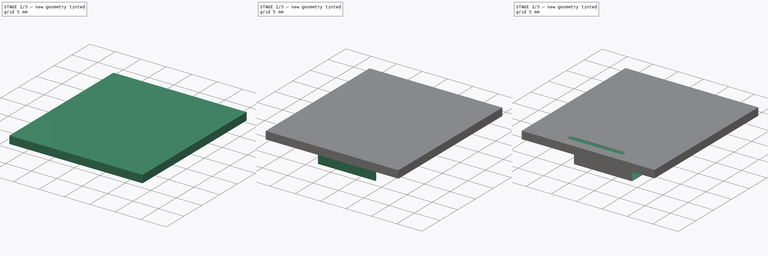
[diagram: build sequence overview — one tinted view per stage of 3, left to right]
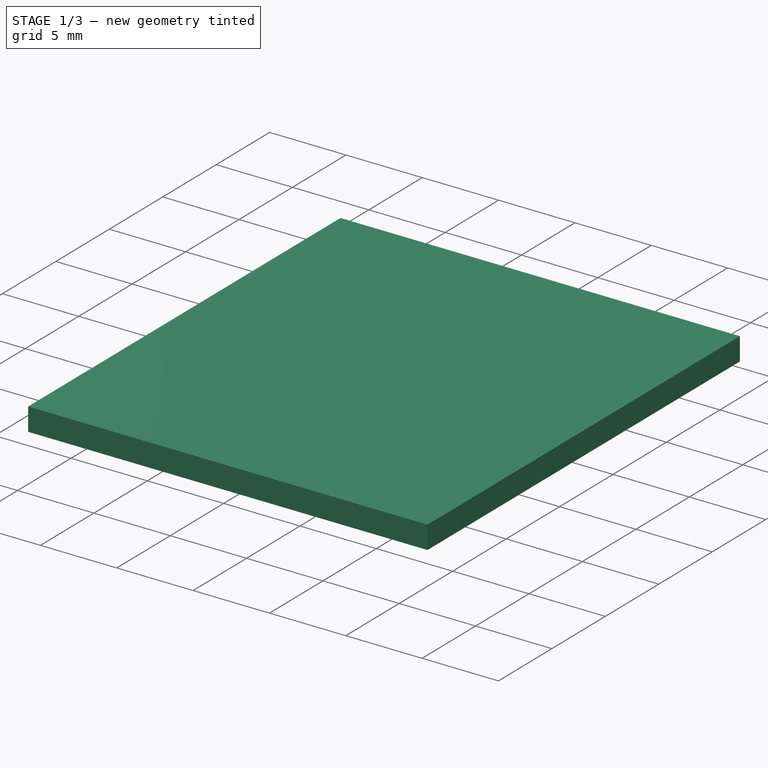
[diagram: stage 1 of 3 — iso view after this stage's code; geometry added in this stage tinted green]
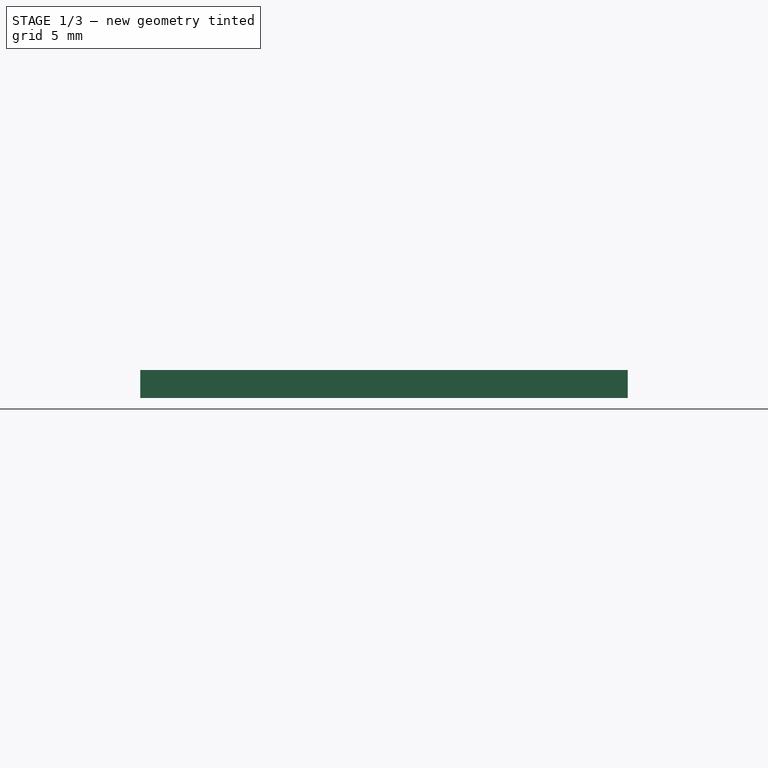
[diagram: stage 1 of 3 — front view after this stage's code; geometry added in this stage tinted green]
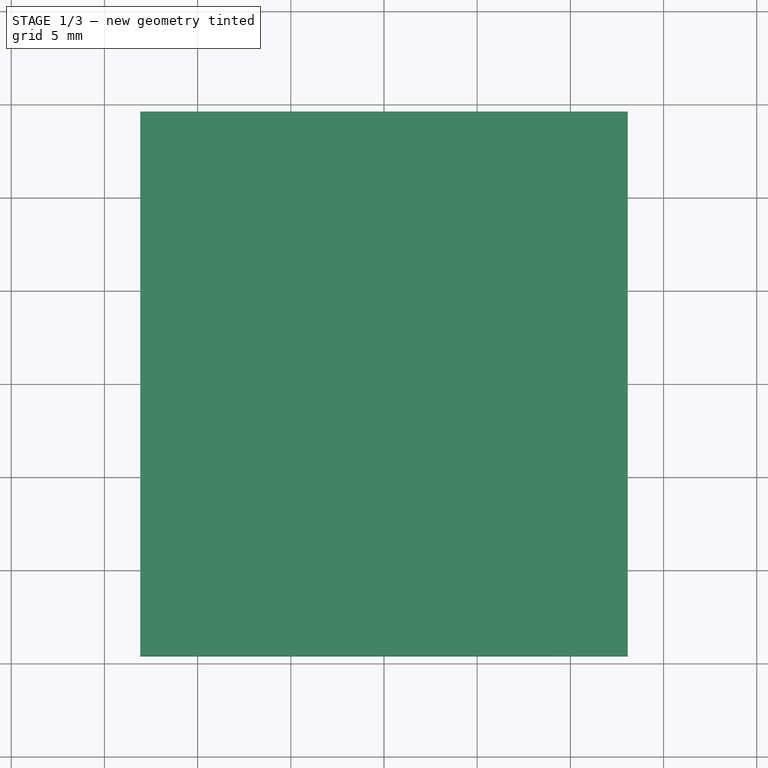
[diagram: stage 1 of 3 — top view after this stage's code; geometry added in this stage tinted green]
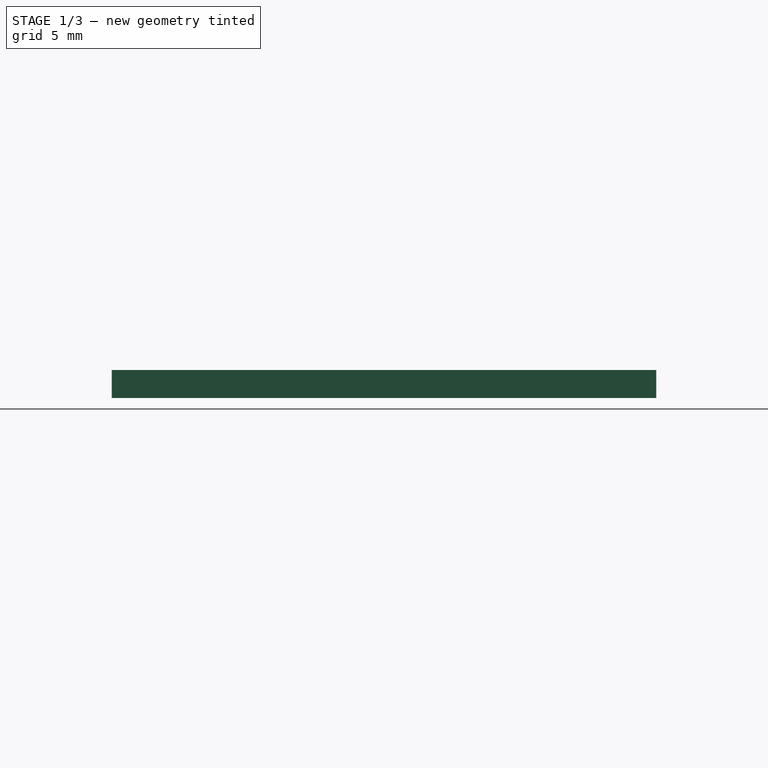
[diagram: stage 1 of 3 — right view after this stage's code; geometry added in this stage tinted green]
FCSTD DOCUMENT  (FreeCAD 0.20R29177 +426 (Git))
Label: 1.3Inch-3D-Model
License: All rights reserved
LicenseURL: http://en.wikipedia.org/wiki/All_rights_reserved
objects: Sketcher::SketchObject×5, PartDesign::Pad×4, PartDesign::Pocket×1, PartDesign::Body×1
note: 16 computed .brp shape members not serialized (recipe doc carries the construction recipe); baked Part::Feature solids carry a one-line shape summary decoded from their .brp

FEATURE [Sketcher::SketchObject] Sketch
  FullyConstrained = true
  MapMode = 5
  Support = -> [XY_Plane]
  sketch-geometry (4):
    g0: LineSegment StartX=-13.08 StartY=14.61 StartZ=0 EndX=13.08 EndY=14.61 EndZ=0
    g1: LineSegment StartX=13.08 StartY=14.61 StartZ=0 EndX=13.08 EndY=-14.61 EndZ=0
    g2: LineSegment StartX=13.08 StartY=-14.61 StartZ=0 EndX=-13.08 EndY=-14.61 EndZ=0
    g3: LineSegment StartX=-13.08 StartY=-14.61 StartZ=0 EndX=-13.08 EndY=14.61 EndZ=0
  constraints (11):
    c: Coincident(g0,g1)
    c: Coincident(g1,g2)
    c: Coincident(g2,g3)
    c: Coincident(g3,g0)
    c: Horizontal(g0)
    c: Horizontal(g2)
    c: Vertical(g1)
    c: Vertical(g3)
    c: DistanceX(g0,g0) = 26.16
    c: DistanceY(g3,g3) = 29.22
    c: Symmetric(g0,g1,g-1)
FEATURE [PartDesign::Pad] Pad
  Direction = (0,0,1)
  Length = 1.5
  Length2 = 10
  Profile = -> Sketch
  ReferenceAxis = -> Sketch [N_Axis]
  Type = 0
FEATURE [Sketcher::SketchObject] Sketch001
  ExternalGeometry = -> [Pad]
  FullyConstrained = true
  MapMode = 5
  Placement = pos=(0,0,1.5) rot=(0,0,1;0rad)
  Support = -> [Pad]
  sketch-geometry (4):
    g0: LineSegment StartX=-11.7 StartY=13.61 StartZ=0 EndX=11.7 EndY=13.61 EndZ=0
    g1: LineSegment StartX=11.7 StartY=13.61 StartZ=0 EndX=11.7 EndY=-9.79 EndZ=0
    g2: LineSegment StartX=11.7 StartY=-9.79 StartZ=0 EndX=-11.7 EndY=-9.79 EndZ=0
    g3: LineSegment StartX=-11.7 StartY=-9.79 StartZ=0 EndX=-11.7 EndY=13.61 EndZ=0
  constraints (11):
    c: Coincident(g0,g1)
    c: Coincident(g1,g2)
    c: Coincident(g2,g3)
    c: Coincident(g3,g0)
    c: Horizontal(g2)
    c: Vertical(g1)
    c: Vertical(g3)
    c: DistanceX(g0,g0) = 23.4
    c: Equal(g3,g0)
    c: Distance(g0,g-3) = 1
    c: Symmetric(g0,g0,g-2)
FEATURE [PartDesign::Pad] Pad001
  BaseFeature = -> Pad
  Direction = (0,0,1)
  Length = 1
  Length2 = 10
  Profile = -> Sketch001
  ReferenceAxis = -> Sketch001 [N_Axis]
  Reversed = true
  Type = 0
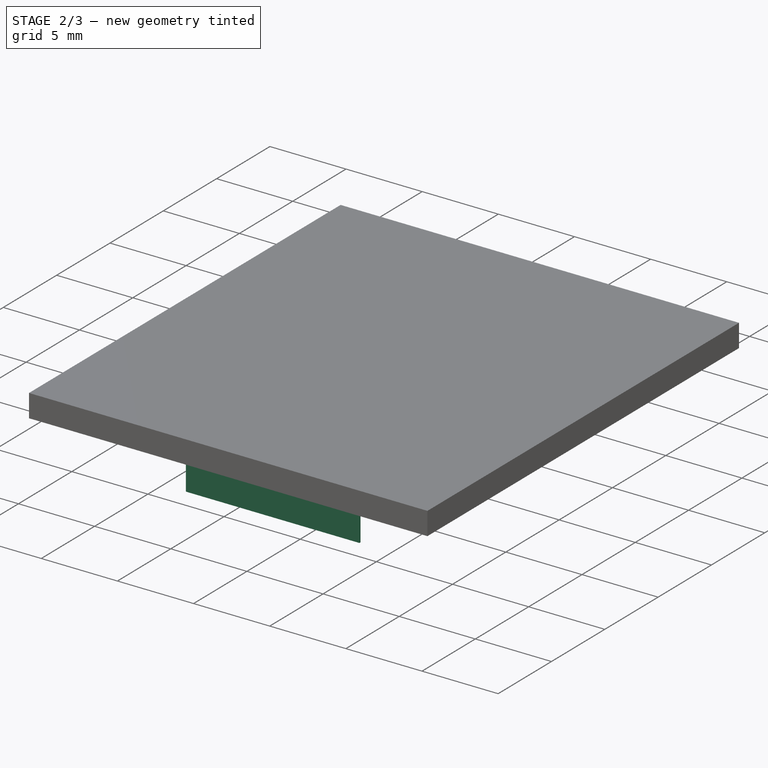
[diagram: stage 2 of 3 — iso view after this stage's code; geometry added in this stage tinted green]
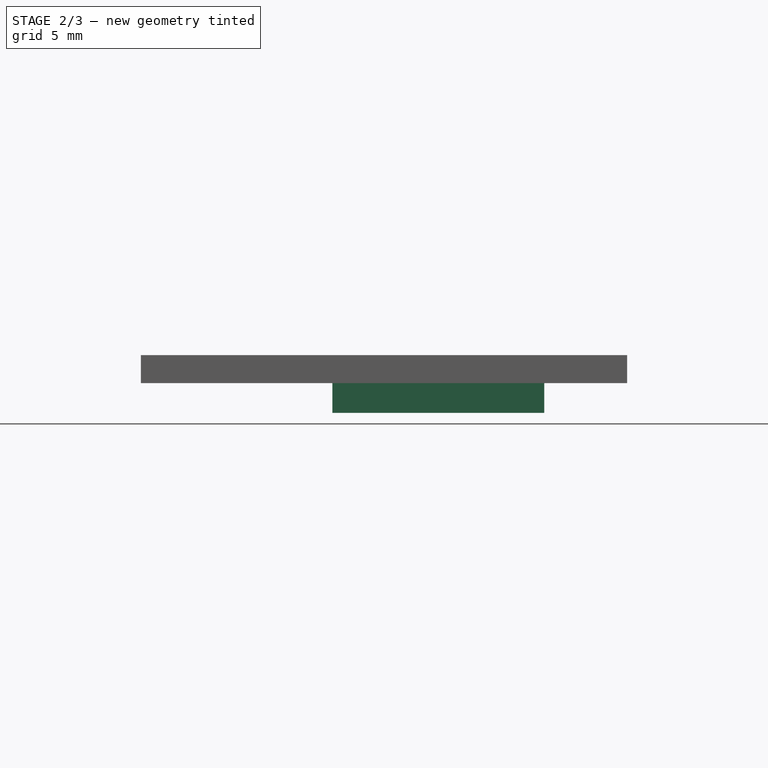
[diagram: stage 2 of 3 — front view after this stage's code; geometry added in this stage tinted green]
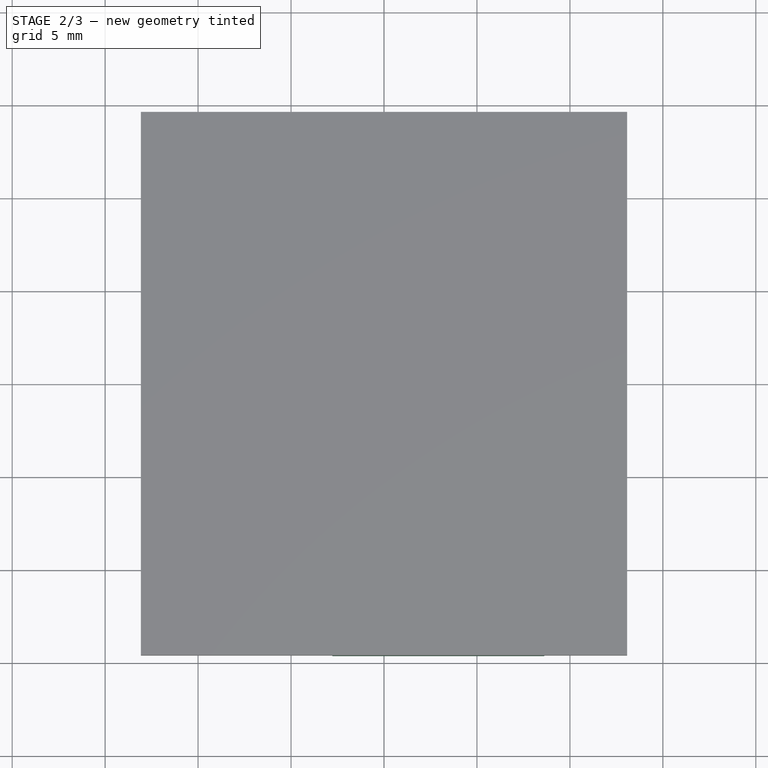
[diagram: stage 2 of 3 — top view after this stage's code; geometry added in this stage tinted green]
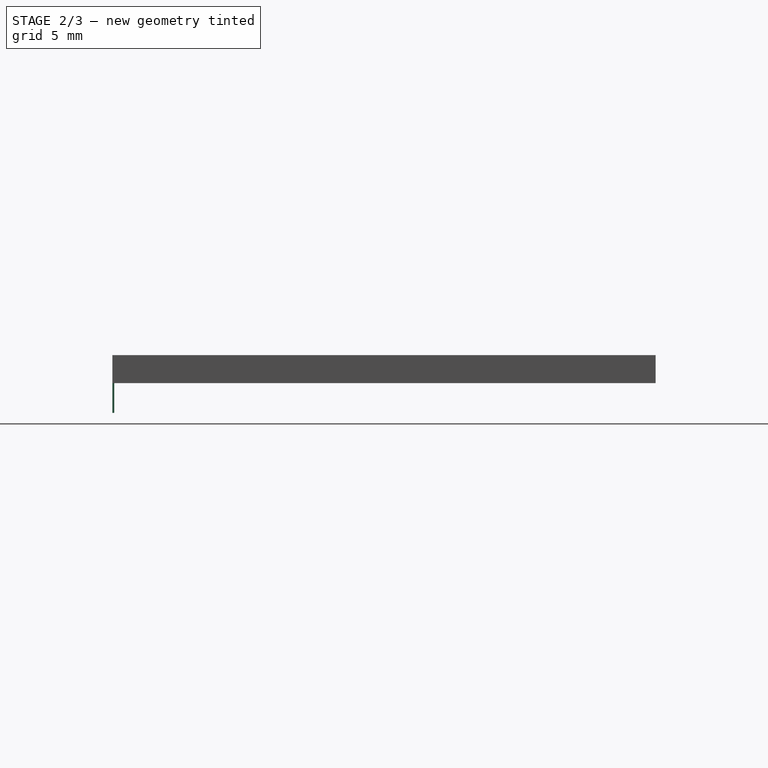
[diagram: stage 2 of 3 — right view after this stage's code; geometry added in this stage tinted green]
FEATURE [Sketcher::SketchObject] Sketch002
  ExternalGeometry = -> [Pad001]
  FullyConstrained = false
  MapMode = 5
  Placement = pos=(0,0,0) rot=(1,0,0;3.14159rad)
  Support = -> [Pad001]
  sketch-geometry (4):
    g0: LineSegment StartX=-2.78 StartY=14.61 StartZ=0 EndX=8.62 EndY=14.61 EndZ=0
    g1: LineSegment StartX=8.62 StartY=14.61 StartZ=0 EndX=8.62 EndY=14.51 EndZ=0
    g2: LineSegment StartX=8.62 StartY=14.51 StartZ=0 EndX=-2.78 EndY=14.51 EndZ=0
    g3: LineSegment StartX=-2.78 StartY=14.51 StartZ=0 EndX=-2.78 EndY=14.61 EndZ=0
  constraints (11):
    c: Coincident(g0,g1)
    c: Coincident(g1,g2)
    c: Coincident(g2,g3)
    c: Coincident(g3,g0)
    c: Horizontal(g0)
    c: Vertical(g1)
    c: Vertical(g3)
    c: DistanceY(g1,g1) = 0.1
    c: PointOnObject(g0,g-3)
    c: Distance(g0,g-4) = 10.3
    c: DistanceX(g0,g0) = 11.4
FEATURE [PartDesign::Pad] Pad002
  BaseFeature = -> Pad001
  Direction = (0,0,-1)
  Length = 1.6
  Length2 = 10
  Profile = -> Sketch002
  ReferenceAxis = -> Sketch002 [N_Axis]
  Type = 0
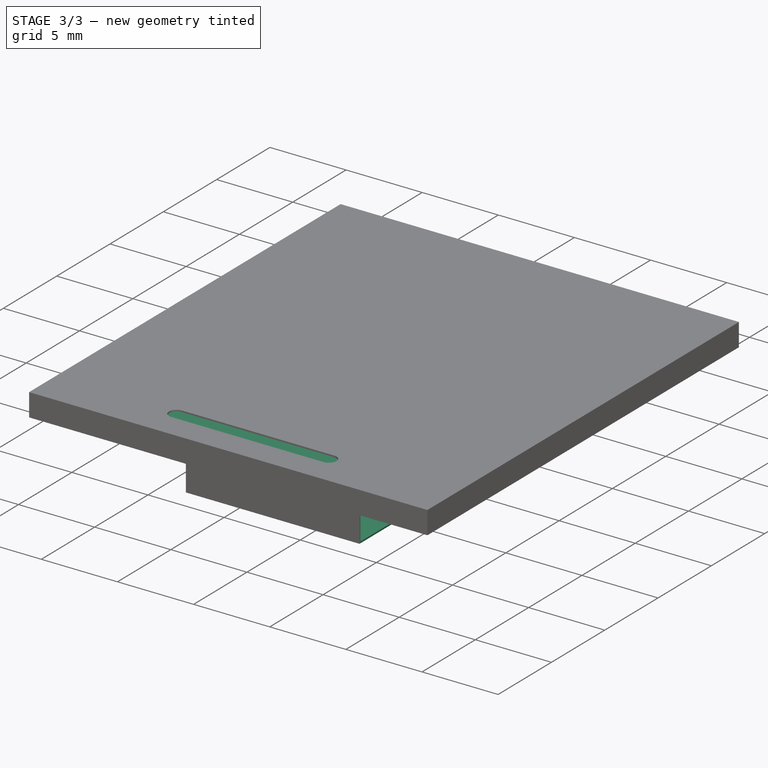
[diagram: stage 3 of 3 — iso view after this stage's code; geometry added in this stage tinted green]
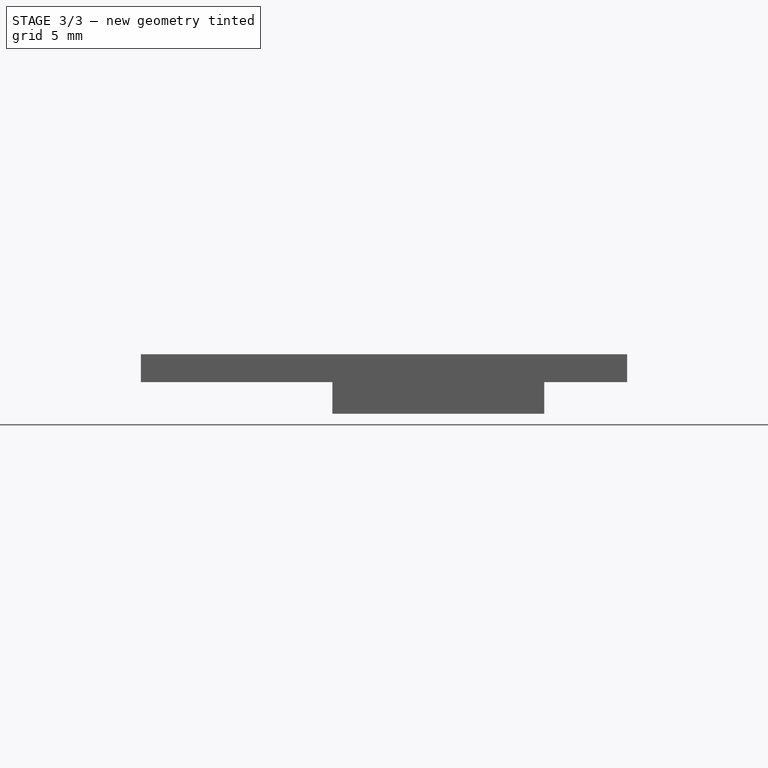
[diagram: stage 3 of 3 — front view after this stage's code; geometry added in this stage tinted green]
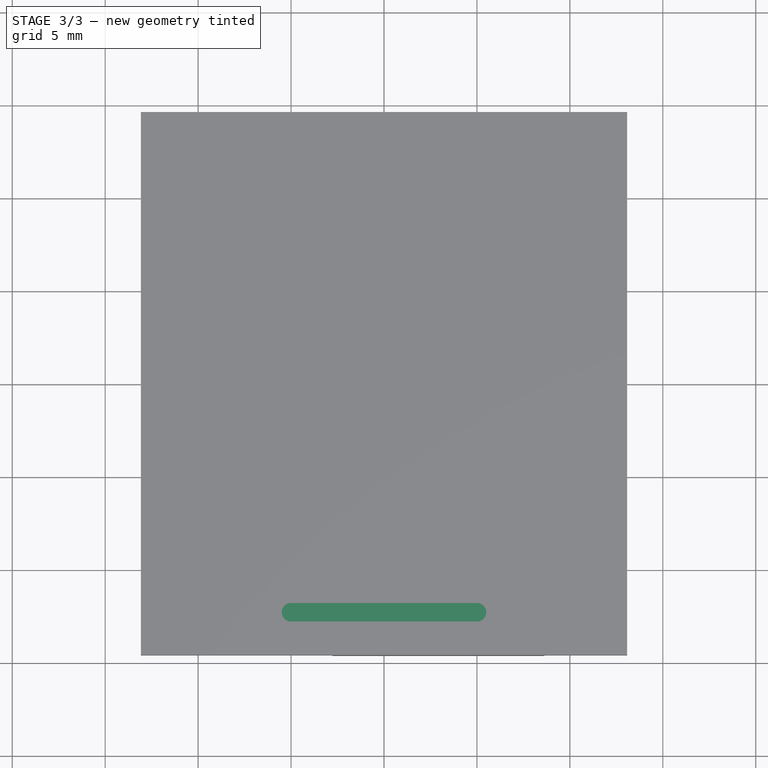
[diagram: stage 3 of 3 — top view after this stage's code; geometry added in this stage tinted green]
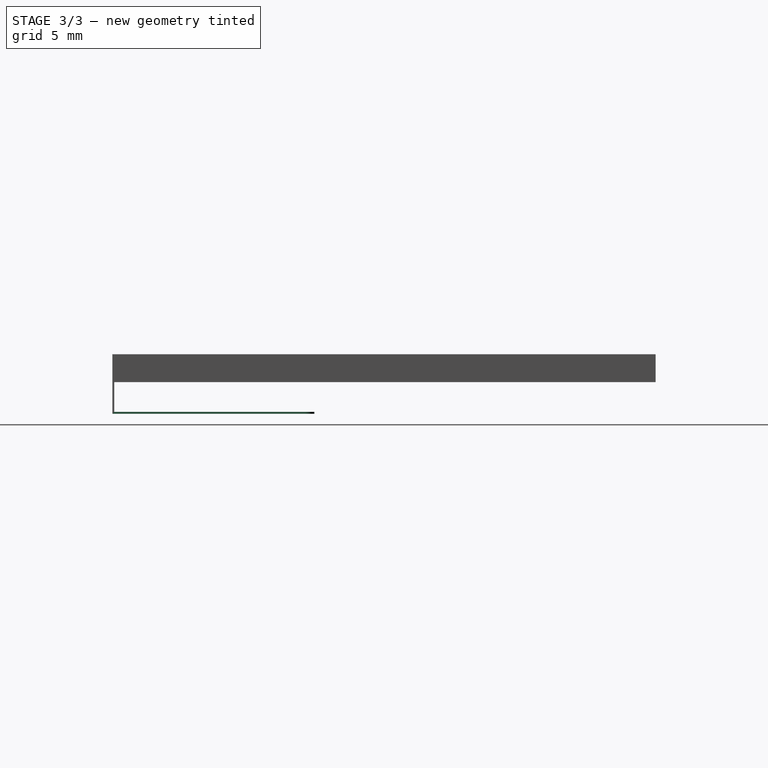
[diagram: stage 3 of 3 — right view after this stage's code; geometry added in this stage tinted green]
FEATURE [Sketcher::SketchObject] Sketch003
  ExternalGeometry = -> [Pad002]
  FullyConstrained = false
  MapMode = 5
  Placement = pos=(0,0,-1.6) rot=(1,0,0;3.14159rad)
  Support = -> [Pad002]
  sketch-geometry (6):
    g0: LineSegment StartX=-2.78 StartY=14.61 StartZ=0 EndX=8.62 EndY=14.61 EndZ=0
    g1: LineSegment StartX=8.62 StartY=14.61 StartZ=0 EndX=8.62 EndY=4.24861 EndZ=0
    g2: LineSegment StartX=8.12 StartY=3.74861 StartZ=0 EndX=-2.28 EndY=3.74861 EndZ=0
    g3: LineSegment StartX=-2.78 StartY=4.24861 StartZ=0 EndX=-2.78 EndY=14.61 EndZ=0
    g4: ArcOfCircle CenterX=8.12 CenterY=4.24861 CenterZ=0 NormalX=0 NormalY=0 NormalZ=1 AngleXU=0 Radius=0.5 StartAngle=4.71239 EndAngle=6.28319
    g5: ArcOfCircle CenterX=-2.28 CenterY=4.24861 CenterZ=0 NormalX=0 NormalY=0 NormalZ=1 AngleXU=0 Radius=0.5 StartAngle=3.14159 EndAngle=4.71239
  constraints (13):
    c: Coincident(g0,g1)
    c: Coincident(g3,g0)
    c: Horizontal(g2)
    c: Vertical(g1)
    c: Vertical(g3)
    c: Coincident(g0,g-5)
    c: Coincident(g0,g-4)
    c: Tangent(g1,g4) = 1.5708
    c: Tangent(g2,g4) = 1.5708
    c: Tangent(g3,g5) = 1.5708
    c: Tangent(g2,g5) = 1.5708
    c: Radius(g4) = 0.5
    c: Radius(g5) = 0.5
FEATURE [PartDesign::Pad] Pad003
  BaseFeature = -> Pad002
  Direction = (0,0,-1)
  Length = 0.1
  Length2 = 10
  Profile = -> Sketch003
  ReferenceAxis = -> Sketch003 [N_Axis]
  Type = 0
FEATURE [Sketcher::SketchObject] Sketch004
  ExternalGeometry = -> [Pad003]
  FullyConstrained = true
  MapMode = 5
  Placement = pos=(0,0,1.5) rot=(0,0,1;0rad)
  Support = -> [Pad003]
  sketch-geometry (4):
    g0: ArcOfCircle CenterX=-5 CenterY=-12.31 CenterZ=0 NormalX=0 NormalY=0 NormalZ=1 AngleXU=0 Radius=0.5 StartAngle=1.5708 EndAngle=4.71239
    g1: ArcOfCircle CenterX=5 CenterY=-12.31 CenterZ=0 NormalX=0 NormalY=0 NormalZ=1 AngleXU=0 Radius=0.5 StartAngle=4.71239 EndAngle=7.85398
    g2: LineSegment StartX=-5 StartY=-12.81 StartZ=0 EndX=5 EndY=-12.81 EndZ=0
    g3: LineSegment StartX=5 StartY=-11.81 StartZ=0 EndX=-5 EndY=-11.81 EndZ=0
  constraints (9):
    c: Tangent(g0,g2) = -1.5708
    c: Tangent(g2,g1) = -1.5708
    c: Tangent(g1,g3) = -1.5708
    c: Tangent(g3,g0) = -1.5708
    c: Equal(g0,g1)
    c: Distance(g1,g1) = 1
    c: DistanceX(g3,g3) = 10
    c: Symmetric(g0,g1,g-2)
    c: Distance(g1,g-3) = 1.8
FEATURE [PartDesign::Pocket] Pocket
  BaseFeature = -> Pad003
  Direction = (0,0,-1)
  Length = 0.1
  Length2 = 5
  Profile = -> Sketch004
  ReferenceAxis = -> Sketch004 [N_Axis]
  Type = 0
FEATURE [PartDesign::Body] Body
  Group = -> [Sketch,Pad,Sketch001,Pad001,Sketch002,Pad002,Sketch003,Pad003,Sketch004,Pocket]
  Origin = -> Origin
  Tip = -> Pocket
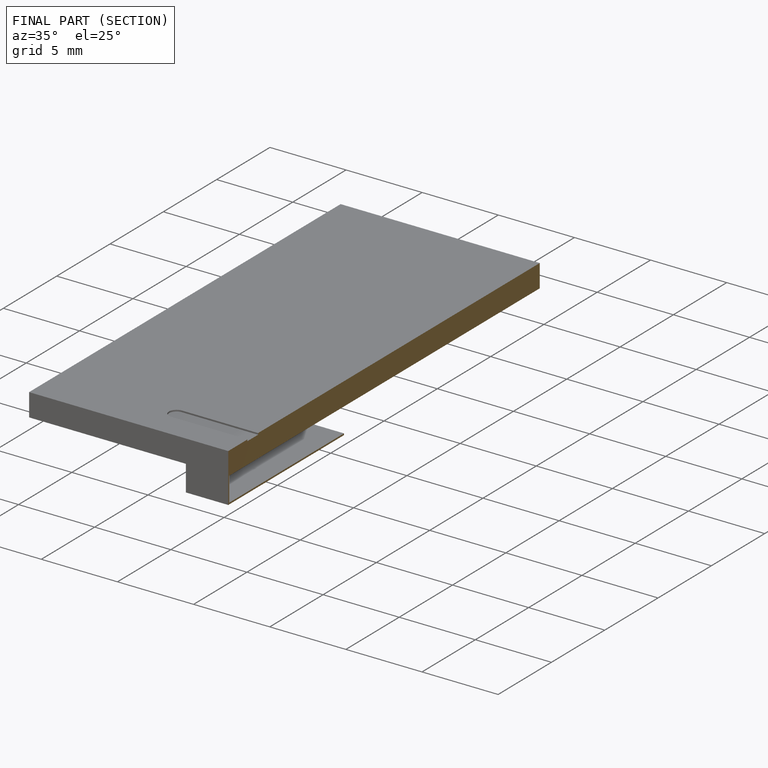
[diagram: finished part — half-section view (interior)]
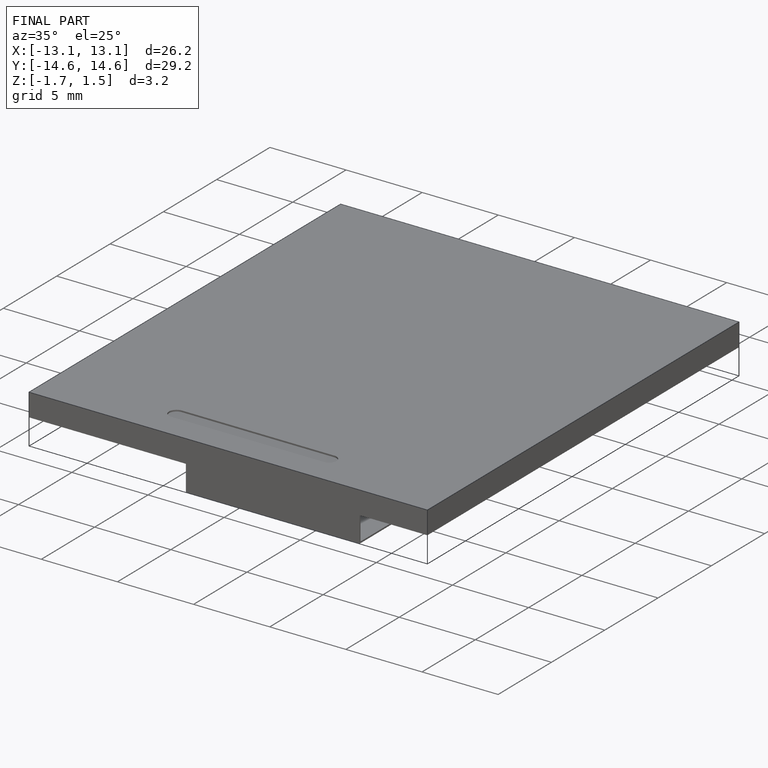
[diagram: finished part — iso view with bounding-box wireframe]
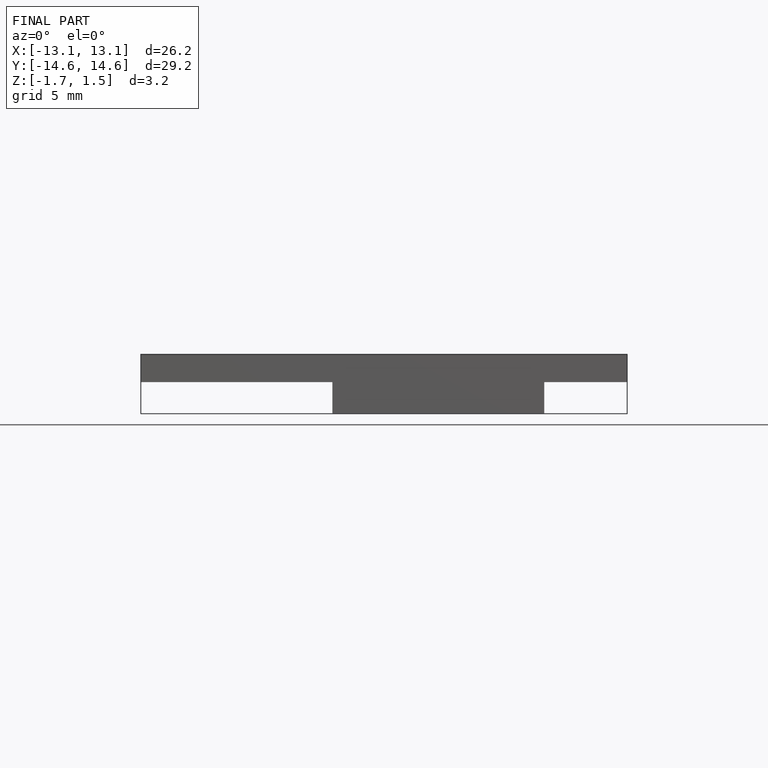
[diagram: finished part — front view with bounding-box wireframe]
